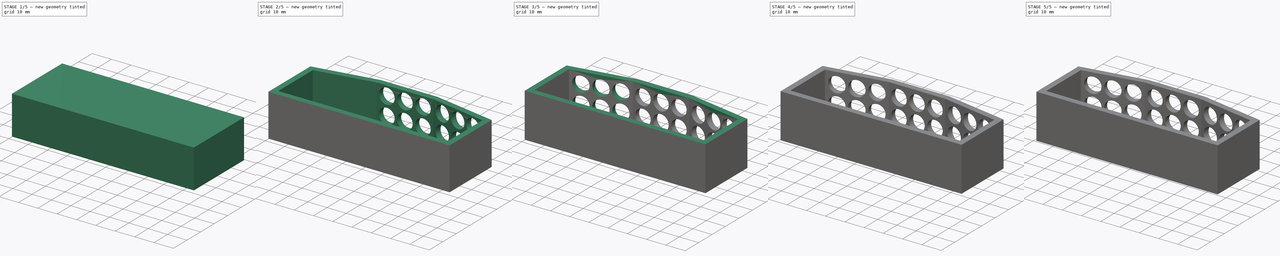
[diagram: build sequence overview — one tinted view per stage of 5, left to right]
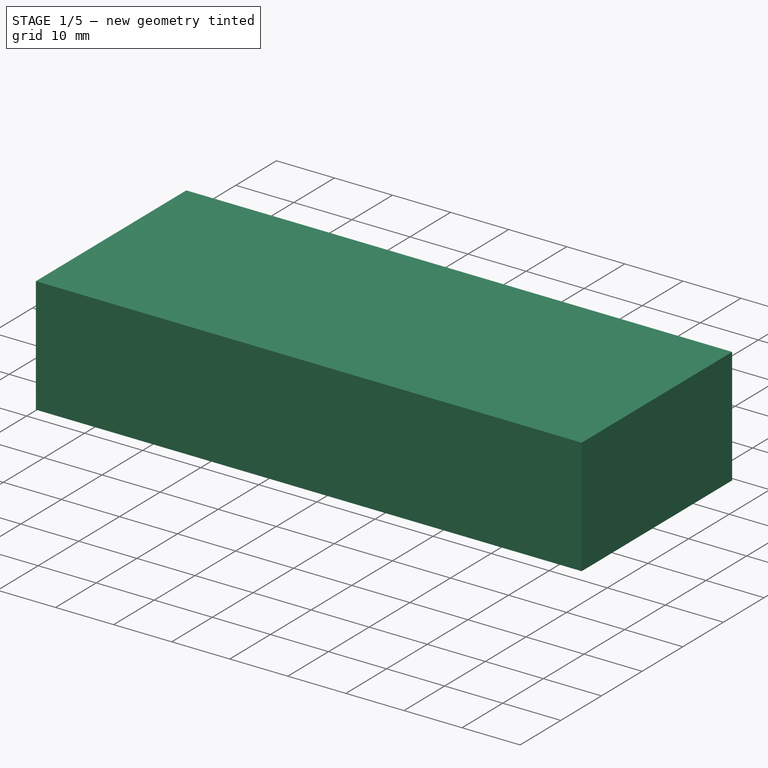
[diagram: stage 1 of 5 — iso view after this stage's code; geometry added in this stage tinted green]
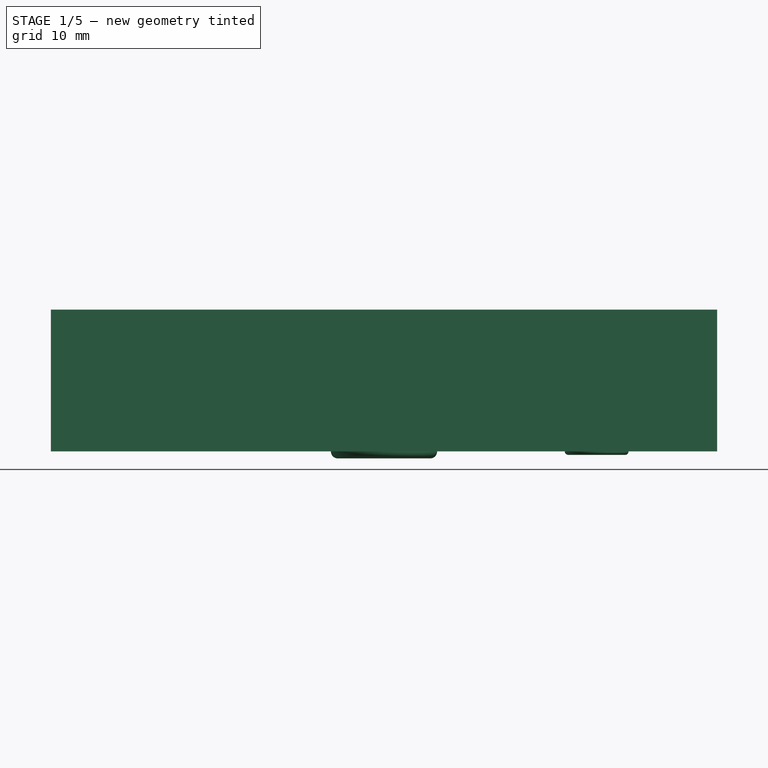
[diagram: stage 1 of 5 — front view after this stage's code; geometry added in this stage tinted green]
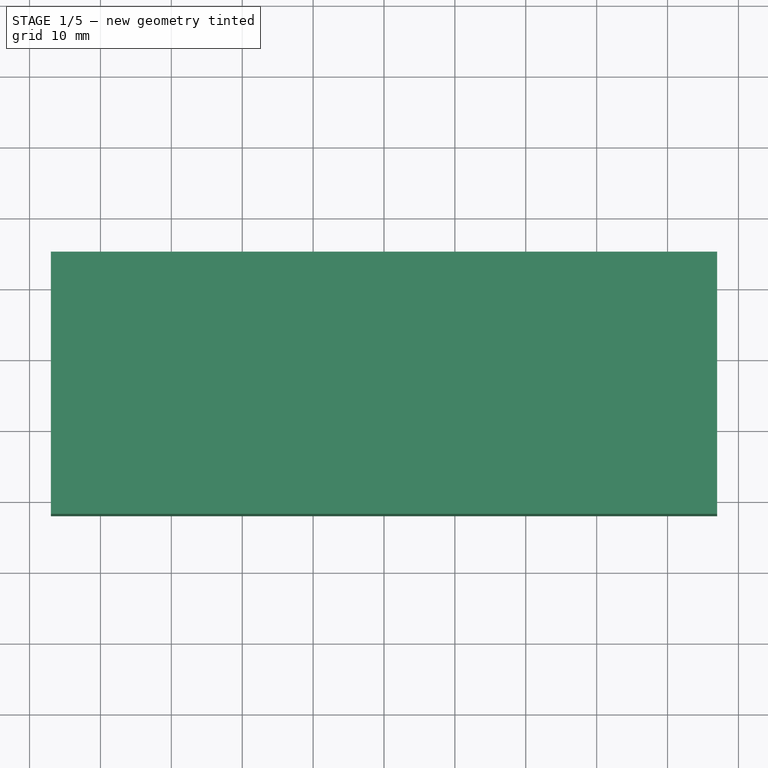
[diagram: stage 1 of 5 — top view after this stage's code; geometry added in this stage tinted green]
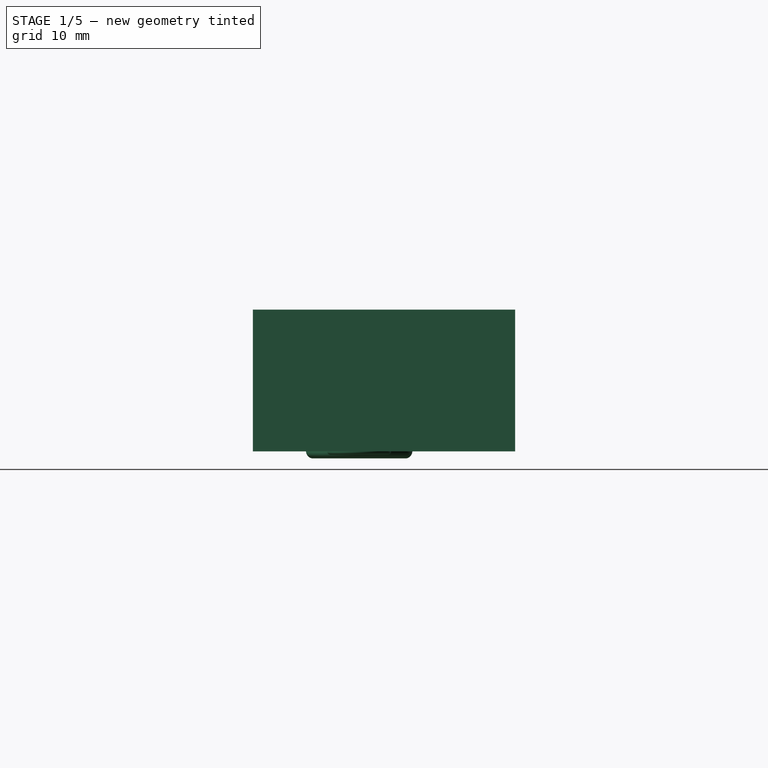
[diagram: stage 1 of 5 — right view after this stage's code; geometry added in this stage tinted green]
FCSTD DOCUMENT  (FreeCAD 0.18.4R)
Label: ir_mount_base_v2
License: All rights reserved
LicenseURL: http://en.wikipedia.org/wiki/All_rights_reserved
objects: Sketcher::SketchObject×14, PartDesign::Pocket×14, Part::Torus×5, Part::Cut×5, PartDesign::Pad×4, PartDesign::Body×1
note: 61 computed .brp shape members not serialized (recipe doc carries the construction recipe); baked Part::Feature solids carry a one-line shape summary decoded from their .brp

FEATURE [Sketcher::SketchObject] Sketch
  MapMode = 5
  Support = -> [XY_Plane]
  sketch-geometry (4):
    g0: LineSegment StartX=0 StartY=0 StartZ=0 EndX=100 EndY=0 EndZ=0
    g1: LineSegment StartX=100 StartY=0 StartZ=0 EndX=100 EndY=45 EndZ=0
    g2: LineSegment StartX=100 StartY=45 StartZ=0 EndX=0 EndY=45 EndZ=0
    g3: LineSegment StartX=0 StartY=45 StartZ=0 EndX=0 EndY=0 EndZ=0
  constraints (11):
    c: Coincident(g0,g1)
    c: Coincident(g1,g2)
    c: Coincident(g2,g3)
    c: Coincident(g3,g0)
    c: Horizontal(g0)
    c: Horizontal(g2)
    c: Vertical(g1)
    c: Vertical(g3)
    c: Distance(g2) = 100
    c: Distance(g1) = 45
    c: Coincident(g-1,g0)
FEATURE [PartDesign::Pad] Pad
  Length = 20
  Length2 = 100
  Profile = -> Sketch
  Type = 0
FEATURE [PartDesign::Pocket] Pocket
  BaseFeature = -> Pad
  Length = 3
  Length2 = 100
  Profile = -> Pad [Face2]
  Type = 0
FEATURE [PartDesign::Pocket] Pocket001
  BaseFeature = -> Pocket
  Length = 3
  Length2 = 100
  Profile = -> Pocket [Face5]
  Type = 0
FEATURE [PartDesign::Pocket] Pocket002
  BaseFeature = -> Pocket001
  Length = 8
  Length2 = 100
  Profile = -> Pocket001 [Face1]
  Type = 0
FEATURE [Part::Torus] Torus001
  Angle1 = -180
  Angle2 = 180
  Angle3 = 360
  AttacherType = Attacher::AttachEngine3D
  Placement = pos=(50,23,0) rot=(0,0,1;0rad)
  Radius1 = 6.5
  Radius2 = 1
FEATURE [Part::Torus] Torus004
  Angle1 = -180
  Angle2 = 180
  Angle3 = 360
  AttacherType = Attacher::AttachEngine3D
  Placement = pos=(80,23,0) rot=(0,0,1;0rad)
  Radius1 = 4
  Radius2 = 0.5
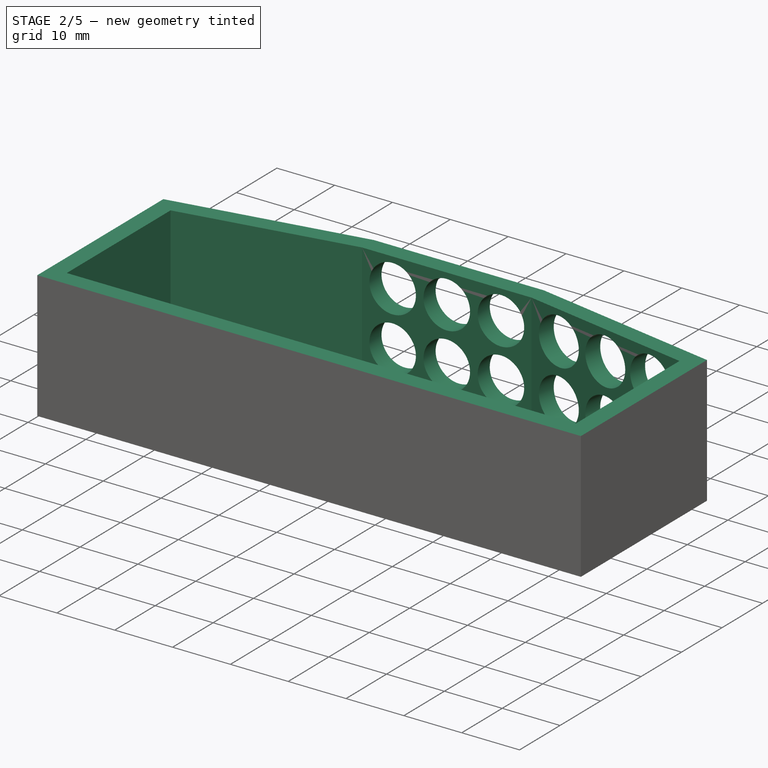
[diagram: stage 2 of 5 — iso view after this stage's code; geometry added in this stage tinted green]
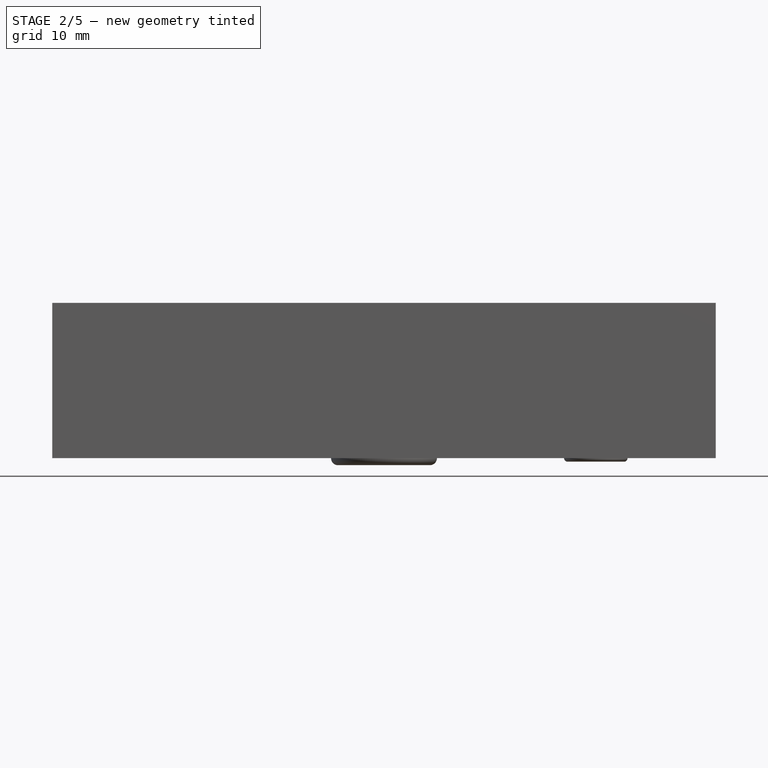
[diagram: stage 2 of 5 — front view after this stage's code; geometry added in this stage tinted green]
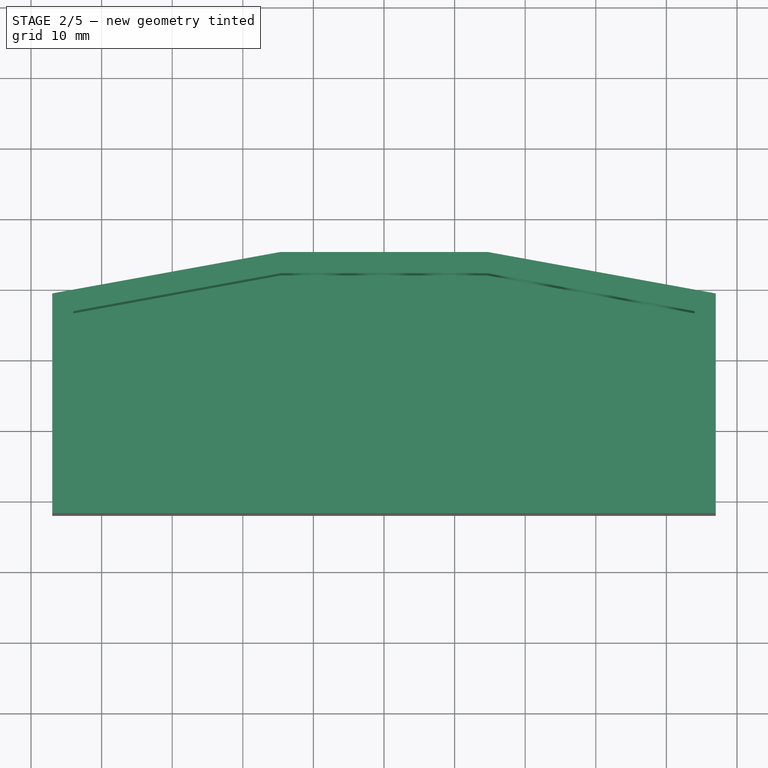
[diagram: stage 2 of 5 — top view after this stage's code; geometry added in this stage tinted green]
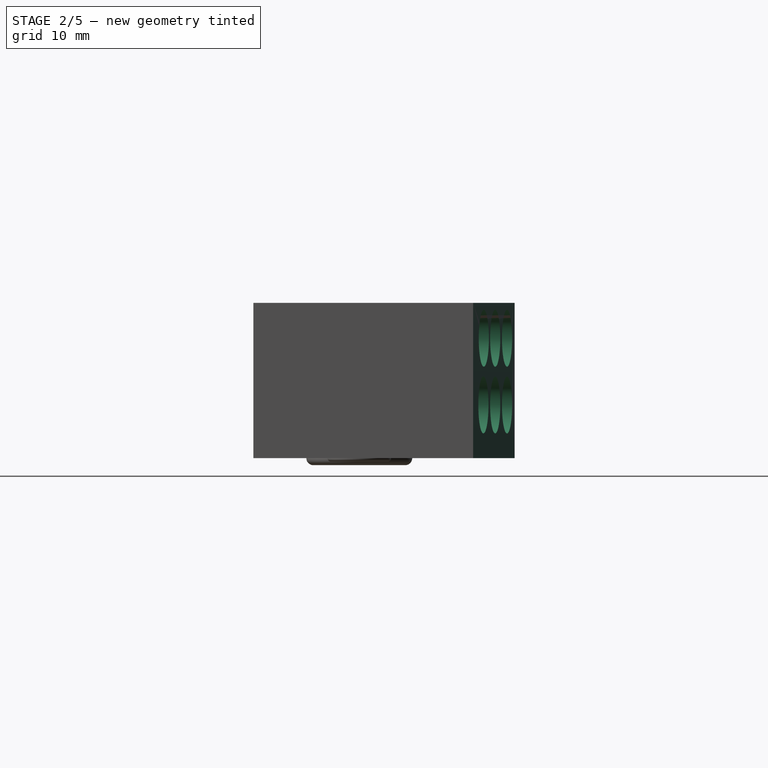
[diagram: stage 2 of 5 — right view after this stage's code; geometry added in this stage tinted green]
FEATURE [Sketcher::SketchObject] Sketch001
  ExternalGeometry = -> [Pocket002]
  MapMode = 5
  Placement = pos=(0,0,20) rot=(0,0,1;0rad)
  Support = -> [Pocket002]
  sketch-geometry (6):
    g0: LineSegment StartX=3 StartY=45 StartZ=0 EndX=3 EndY=39.13 EndZ=0
    g1: LineSegment StartX=3 StartY=39.13 StartZ=0 EndX=35.3 EndY=45 EndZ=0
    g2: LineSegment StartX=35.3 StartY=45 StartZ=0 EndX=3 EndY=45 EndZ=0
    g3: LineSegment StartX=64.7 StartY=45 StartZ=0 EndX=97 EndY=45 EndZ=0
    g4: LineSegment StartX=97 StartY=45 StartZ=0 EndX=97 EndY=39.13 EndZ=0
    g5: LineSegment StartX=97 StartY=39.13 StartZ=0 EndX=64.7 EndY=45 EndZ=0
  constraints (19):
    c: Coincident(g3,g4)
    c: Coincident(g4,g5)
    c: Coincident(g5,g3)
    c: Coincident(g2,g1)
    c: Coincident(g2,g0)
    c: Coincident(g0,g1)
    c: Distance(g0,g-4) = 94
    c: Distance(g3,g-6) = 94
    c: Distance(g0,g-4) = 94
    c: Distance(g4,g-6) = 94
    c: Distance(g-4) = 37
    c: Distance(g1,g-5) = 37
    c: Distance(g0,g-5) = 37
    c: Distance(g3,g-5) = 37
    c: Distance(g3,g-5) = 37
    c: Distance(g2) = 32.3
    c: Distance(g3) = 32.3
    c: Distance(g0) = 5.87
    c: Distance(g4) = 5.87
FEATURE [PartDesign::Pocket] Pocket003
  BaseFeature = -> Pocket002
  Length = 20
  Length2 = 100
  Profile = -> Sketch001
  Type = 0
FEATURE [Sketcher::SketchObject] Sketch002
  ExternalGeometry = -> [Pocket003]
  MapMode = 5
  Placement = pos=(0,0,20) rot=(0,0,1;0rad)
  Support = -> [Pocket003]
  sketch-geometry (6):
    g0: LineSegment StartX=6 StartY=36.6261 StartZ=0 EndX=6 EndY=11 EndZ=0
    g1: LineSegment StartX=6 StartY=11 StartZ=0 EndX=94 EndY=11 EndZ=0
    g2: LineSegment StartX=94 StartY=36.6261 StartZ=0 EndX=94 EndY=11 EndZ=0
    g3: LineSegment StartX=64.6581 StartY=42 StartZ=0 EndX=94 EndY=36.6261 EndZ=0
    g4: LineSegment StartX=35.3419 StartY=42 StartZ=0 EndX=64.6581 EndY=42 EndZ=0
    g5: LineSegment StartX=35.3419 StartY=42 StartZ=0 EndX=6 EndY=36.6261 EndZ=0
  constraints (22):
    c: Coincident(g0,g5)
    c: Coincident(g0,g1)
    c: Coincident(g1,g2)
    c: Coincident(g3,g2)
    c: Coincident(g3,g4)
    c: Coincident(g4,g5)
    c: Distance(g1,g-7) = 3
    c: Distance(g0,g-7) = 3
    c: Distance(g0,g-6) = 3
    c: Distance(g1,g-8) = 3
    c: Distance(g2,g-8) = 3
    c: Distance(g0,g-6) = 3
    c: Distance(g4,g-3) = 3
    c: Distance(g3,g-3) = 3
    c: Distance(g0,g-5) = 3
    c: Distance(g-6) = 31.13
    c: Distance(g5) = 29.83
    c: Distance(g3) = 29.83
    c: Distance(g2,g-4) = 3
    c: Distance(g-5) = 32.8291
    c: Distance(g-4) = 32.8291
    c: Distance(g-3) = 29.4
FEATURE [PartDesign::Pocket] Pocket004
  BaseFeature = -> Pocket003
  Length = 17
  Length2 = 100
  Profile = -> Sketch002
  Type = 0
FEATURE [PartDesign::Pad] Pad001
  BaseFeature = -> Pocket004
  Length = 2
  Length2 = 100
  Profile = -> Pocket004 [Face8]
  Refine = true
  Type = 0
FEATURE [Sketcher::SketchObject] Sketch003
  ExternalGeometry = -> [Pad001]
  MapMode = 5
  Placement = pos=(0,45,0) rot=(0,0.707107,0.707107;3.14159rad)
  Support = -> [Pad001]
  sketch-geometry (6):
    g0: Circle CenterX=-59.3625 CenterY=16.975 CenterZ=0 NormalX=0 NormalY=0 NormalZ=1 AngleXU=0 Radius=4.025
    g1: Circle CenterX=-50 CenterY=16.975 CenterZ=0 NormalX=0 NormalY=0 NormalZ=1 AngleXU=0 Radius=4.025
    g2: Circle CenterX=-40.6375 CenterY=16.975 CenterZ=0 NormalX=0 NormalY=0 NormalZ=1 AngleXU=0 Radius=4.025
    g3: Circle CenterX=-59.3625 CenterY=7.525 CenterZ=0 NormalX=0 NormalY=0 NormalZ=1 AngleXU=0 Radius=4.025
    g4: Circle CenterX=-50 CenterY=7.525 CenterZ=0 NormalX=0 NormalY=0 NormalZ=1 AngleXU=0 Radius=4.025
    g5: Circle CenterX=-40.6375 CenterY=7.525 CenterZ=0 NormalX=0 NormalY=0 NormalZ=1 AngleXU=0 Radius=4.025
  constraints (18):
    c: Radius(g2) = 4.025
    c: Radius(g1) = 4.025
    c: Radius(g0) = 4.025
    c: Radius(g3) = 4.025
    c: Radius(g4) = 4.025
    c: Radius(g5) = 4.025
    c: Distance(g5,g-5) = 5.3375
    c: Distance(g3,g-4) = 5.3375
    c: Distance(g4,g3) = 9.3625
    c: Distance(g0,g-4) = 5.3375
    c: Distance(g2,g-5) = 5.3375
    c: Distance(g1,g0) = 9.3625
    c: Distance(g0,g-3) = 5.025
    c: Distance(g1,g-3) = 5.025
    c: Distance(g2,g-3) = 5.025
    c: Distance(g3,g-6) = 7.525
    c: Distance(g4,g-6) = 7.525
    c: Distance(g5,g-6) = 7.525
FEATURE [PartDesign::Pocket] Pocket005
  BaseFeature = -> Pad001
  Length = 5
  Length2 = 100
  Profile = -> Sketch003
  Type = 0
FEATURE [Sketcher::SketchObject] Sketch004
  ExternalGeometry = -> [Pocket005]
  MapMode = 5
  Placement = pos=(9.9851,54.9435,0) rot=(0.063602,0.705675,0.705675;3.01456rad)
  Support = -> [Pocket005]
  sketch-geometry (6):
    g0: Circle CenterX=-80.0099 CenterY=16.975 CenterZ=0 NormalX=0 NormalY=0 NormalZ=1 AngleXU=0 Radius=4.025
    g1: Circle CenterX=-70.9736 CenterY=16.975 CenterZ=0 NormalX=0 NormalY=0 NormalZ=1 AngleXU=0 Radius=4.025
    g2: Circle CenterX=-61.6111 CenterY=16.975 CenterZ=0 NormalX=0 NormalY=0 NormalZ=1 AngleXU=0 Radius=4.025
    g3: Circle CenterX=-80.3361 CenterY=7.525 CenterZ=0 NormalX=0 NormalY=0 NormalZ=1 AngleXU=0 Radius=4.025
    g4: Circle CenterX=-70.9736 CenterY=7.525 CenterZ=0 NormalX=0 NormalY=0 NormalZ=1 AngleXU=0 Radius=4.025
    g5: Circle CenterX=-61.6111 CenterY=7.525 CenterZ=0 NormalX=0 NormalY=0 NormalZ=1 AngleXU=0 Radius=4.025
  constraints (19):
    c: Radius(g2) = 4.025
    c: Radius(g1) = 4.025
    c: Radius(g5) = 4.025
    c: Radius(g4) = 4.025
    c: Radius(g3) = 4.025
    c: Radius(g0) = 4.025
    c: Distance(g5,g-5) = 7.525
    c: Distance(g-5) = 32.8291
    c: Distance(g4,g-5) = 7.525
    c: Distance(g3,g-5) = 7.525
    c: Distance(g2,g-3) = 5.025
    c: Distance(g1,g-3) = 5.025
    c: Distance(g0,g-3) = 5.025
    c: Distance(g0,g1) = 9.03625
    c: Distance(g1,g2) = 9.3625
    c: Distance(g3,g4) = 9.3625
    c: Distance(g4,g5) = 9.3625
    c: Distance(g5,g-4) = 6
    c: Distance(g2,g-4) = 6
FEATURE [PartDesign::Pocket] Pocket006
  BaseFeature = -> Pocket005
  Length = 5
  Length2 = 100
  Profile = -> Sketch004
  Type = 0
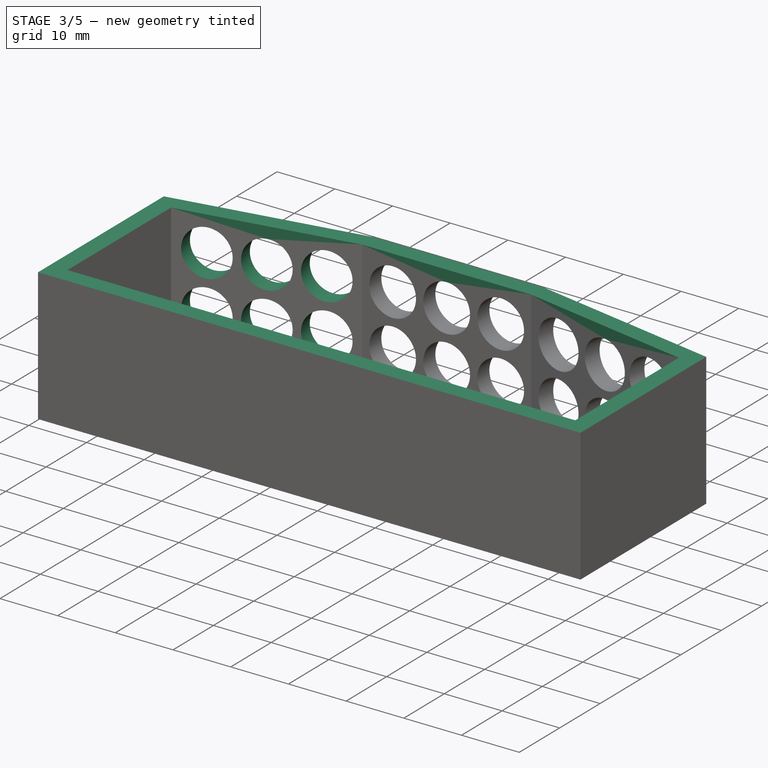
[diagram: stage 3 of 5 — iso view after this stage's code; geometry added in this stage tinted green]
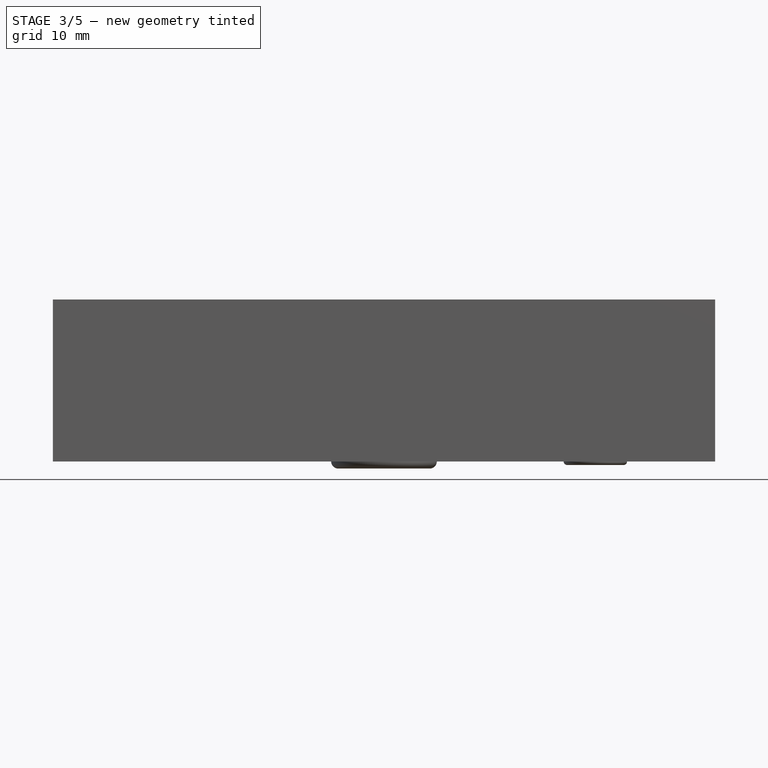
[diagram: stage 3 of 5 — front view after this stage's code; geometry added in this stage tinted green]
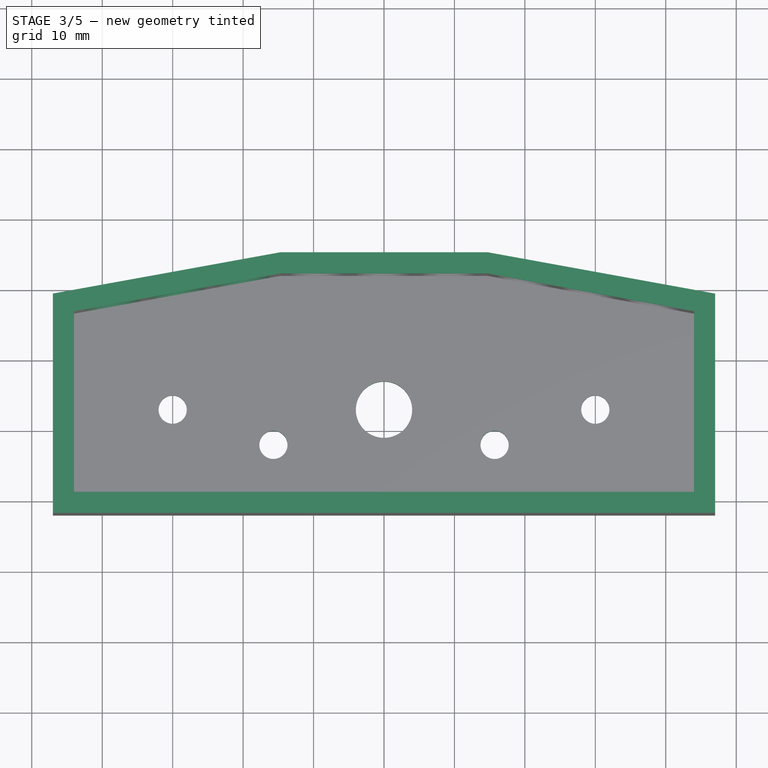
[diagram: stage 3 of 5 — top view after this stage's code; geometry added in this stage tinted green]
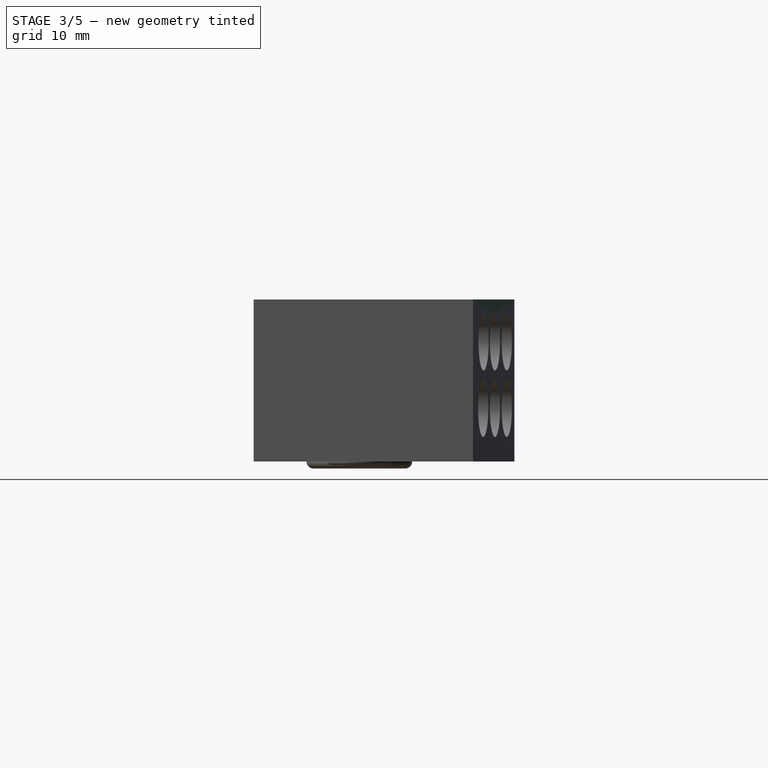
[diagram: stage 3 of 5 — right view after this stage's code; geometry added in this stage tinted green]
FEATURE [Sketcher::SketchObject] Sketch005
  ExternalGeometry = -> [Pocket006]
  MapMode = 5
  Placement = pos=(-6.78797,37.3512,0) rot=(-0.063602,0.705675,0.705675;3.26863rad)
  Support = -> [Pocket006]
  sketch-geometry (6):
    g0: Circle CenterX=-36.7773 CenterY=16.975 CenterZ=0 NormalX=0 NormalY=0 NormalZ=1 AngleXU=0 Radius=4.025
    g1: Circle CenterX=-27.4148 CenterY=16.975 CenterZ=0 NormalX=0 NormalY=0 NormalZ=1 AngleXU=0 Radius=4.025
    g2: Circle CenterX=-18.0523 CenterY=16.975 CenterZ=0 NormalX=0 NormalY=0 NormalZ=1 AngleXU=0 Radius=4.025
    g3: Circle CenterX=-36.7773 CenterY=7.525 CenterZ=0 NormalX=0 NormalY=0 NormalZ=1 AngleXU=0 Radius=4.025
    g4: Circle CenterX=-27.4148 CenterY=7.525 CenterZ=0 NormalX=0 NormalY=0 NormalZ=1 AngleXU=0 Radius=4.025
    g5: Circle CenterX=-18.0523 CenterY=7.525 CenterZ=0 NormalX=0 NormalY=0 NormalZ=1 AngleXU=0 Radius=4.025
  constraints (18):
    c: Radius(g2) = 4.025
    c: Radius(g1) = 4.025
    c: Radius(g0) = 4.025
    c: Radius(g3) = 4.025
    c: Radius(g4) = 4.025
    c: Radius(g5) = 4.025
    c: Distance(g3,g-5) = 7.525
    c: Distance(g4,g-5) = 7.525
    c: Distance(g5,g-5) = 7.525
    c: Distance(g0,g-3) = 5.025
    c: Distance(g1,g-3) = 5.025
    c: Distance(g2,g-3) = 5.025
    c: Distance(g0,g1) = 9.3625
    c: Distance(g1,g2) = 9.3625
    c: Distance(g3,g4) = 9.3625
    c: Distance(g4,g5) = 9.3625
    c: Distance(g3,g-6) = 6
    c: Distance(g0,g-6) = 6
FEATURE [PartDesign::Pocket] Pocket007
  BaseFeature = -> Pocket006
  Length = 5
  Length2 = 100
  Profile = -> Sketch005
  Type = 0
FEATURE [Sketcher::SketchObject] Sketch006
  ExternalGeometry = -> [Pocket007]
  MapMode = 5
  Placement = pos=(0,0,0) rot=(1,0,0;3.14159rad)
  Support = -> [Pocket007]
  sketch-geometry (5):
    g0: Circle CenterX=50 CenterY=-23 CenterZ=0 NormalX=0 NormalY=0 NormalZ=1 AngleXU=0 Radius=4
    g1: Circle CenterX=65.7 CenterY=-18 CenterZ=0 NormalX=0 NormalY=0 NormalZ=1 AngleXU=0 Radius=2
    g2: Circle CenterX=34.3 CenterY=-18 CenterZ=0 NormalX=0 NormalY=0 NormalZ=1 AngleXU=0 Radius=2
    g3: Circle CenterX=20 CenterY=-23 CenterZ=0 NormalX=0 NormalY=0 NormalZ=1 AngleXU=0 Radius=2
    g4: Circle CenterX=80 CenterY=-23 CenterZ=0 NormalX=0 NormalY=0 NormalZ=1 AngleXU=0 Radius=2
  constraints (17):
    c: Radius(g0) = 4
    c: Radius(g1) = 2
    c: Radius(g2) = 2
    c: Radius(g3) = 2
    c: Radius(g4) = 2
    c: Distance(g-3) = 94
    c: Distance(g0,g-8) = 47
    c: Distance(g1,g-3) = 10
    c: Distance(g2,g-3) = 10
    c: Distance(g1,g-8) = 31.3
    c: Distance(g2,g-4) = 31.3
    c: Distance(g0,g-3) = 15
    c: Distance(g3,g-4) = 17
    c: Distance(g4,g-8) = 17
    c: Distance(g-4) = 31.13
    c: Distance(g3,g-3) = 15
    c: Distance(g4,g-3) = 15
FEATURE [PartDesign::Pocket] Pocket008
  BaseFeature = -> Pocket007
  Length = 5
  Length2 = 100
  Profile = -> Sketch006
  Type = 0
FEATURE [Sketcher::SketchObject] Sketch007
  ExternalGeometry = -> [Pocket008]
  MapMode = 5
  Placement = pos=(0,0,0) rot=(1,0,0;3.14159rad)
  Support = -> [Pocket008]
  sketch-geometry (2):
    g0: Circle CenterX=20 CenterY=-23 CenterZ=0 NormalX=0 NormalY=0 NormalZ=1 AngleXU=0 Radius=3
    g1: Circle CenterX=80 CenterY=-23 CenterZ=0 NormalX=0 NormalY=0 NormalZ=1 AngleXU=0 Radius=3
  constraints (4):
    c: Radius(g1) = 3
    c: Radius(g0) = 3
    c: Coincident(g-3,g0)
    c: Coincident(g1,g-4)
FEATURE [PartDesign::Pocket] Pocket009
  BaseFeature = -> Pocket008
  Length = 1
  Length2 = 100
  Profile = -> Sketch007
  Type = 0
FEATURE [PartDesign::Pad] Pad002
  BaseFeature = -> Pocket009
  Length = 1
  Length2 = 100
  Profile = -> Pocket009 [Face13]
  Refine = true
  Type = 0
FEATURE [Sketcher::SketchObject] Sketch008
  ExternalGeometry = -> [Pad002]
  MapMode = 5
  Placement = pos=(0,45,0) rot=(0,0.707107,0.707107;3.14159rad)
  Support = -> [Pad002]
  sketch-geometry (8):
    g0: Circle CenterX=-59.3625 CenterY=16.975 CenterZ=0 NormalX=0 NormalY=0 NormalZ=1 AngleXU=0 Radius=4.05
    g1: Circle CenterX=-50 CenterY=16.975 CenterZ=0 NormalX=0 NormalY=0 NormalZ=1 AngleXU=0 Radius=4.05
    g2: Circle CenterX=-40.6375 CenterY=16.975 CenterZ=0 NormalX=0 NormalY=0 NormalZ=1 AngleXU=0 Radius=4.05
    g3: Circle CenterX=-40.6375 CenterY=7.525 CenterZ=0 NormalX=0 NormalY=0 NormalZ=1 AngleXU=0 Radius=4.05
    g4: Circle CenterX=-50 CenterY=7.525 CenterZ=0 NormalX=0 NormalY=0 NormalZ=1 AngleXU=0 Radius=4.05
    g5: Circle CenterX=-59.3625 CenterY=7.525 CenterZ=0 NormalX=0 NormalY=0 NormalZ=1 AngleXU=0 Radius=4.05
    g6: GeomPoint X=-50 Y=16.975 Z=0
    g7: GeomPoint X=-50 Y=16.975 Z=0
  constraints (13):
    c: Radius(g0) = 4.05
    c: Coincident(g0,g-8)
    c: Radius(g-8) = 4.025
    c: Radius(g1) = 4.05
    c: Radius(g2) = 4.05
    c: Radius(g5) = 4.05
    c: Radius(g4) = 4.05
    c: Radius(g3) = 4.05
    c: Coincident(g6,g1)
    c: Coincident(g2,g-4)
    c: Coincident(g5,g-7)
    c: Coincident(g4,g-6)
    c: Coincident(g3,g-5)
FEATURE [PartDesign::Pocket] Pocket010
  BaseFeature = -> Pad002
  Length = 5
  Length2 = 100
  Profile = -> Sketch008
  Type = 0
FEATURE [Sketcher::SketchObject] Sketch009
  ExternalGeometry = -> [Pocket010]
  MapMode = 5
  Placement = pos=(9.9851,54.9435,0) rot=(0.063602,0.705675,0.705675;3.01456rad)
  Support = -> [Pocket010]
  sketch-geometry (6):
    g0: Circle CenterX=-80.0099 CenterY=16.975 CenterZ=0 NormalX=0 NormalY=0 NormalZ=1 AngleXU=0 Radius=4.05
    g1: Circle CenterX=-70.9736 CenterY=16.975 CenterZ=0 NormalX=0 NormalY=0 NormalZ=1 AngleXU=0 Radius=4.05
    g2: Circle CenterX=-61.6111 CenterY=16.975 CenterZ=0 NormalX=0 NormalY=0 NormalZ=1 AngleXU=0 Radius=4.05
    g3: Circle CenterX=-61.6111 CenterY=7.525 CenterZ=0 NormalX=0 NormalY=0 NormalZ=1 AngleXU=0 Radius=4.05
    g4: Circle CenterX=-70.9736 CenterY=7.525 CenterZ=0 NormalX=0 NormalY=0 NormalZ=1 AngleXU=0 Radius=4.05
    g5: Circle CenterX=-80.3361 CenterY=7.525 CenterZ=0 NormalX=0 NormalY=0 NormalZ=1 AngleXU=0 Radius=4.05
  constraints (12):
    c: Radius(g0) = 4.05
    c: Radius(g1) = 4.05
    c: Radius(g2) = 4.05
    c: Radius(g3) = 4.05
    c: Radius(g4) = 4.05
    c: Radius(g5) = 4.05
    c: Coincident(g2,g-3)
    c: Coincident(g1,g-6)
    c: Coincident(g0,g-7)
    c: Coincident(g5,g-8)
    c: Coincident(g4,g-4)
    c: Coincident(g3,g-5)
FEATURE [PartDesign::Pocket] Pocket011
  BaseFeature = -> Pocket010
  Length = 5
  Length2 = 100
  Profile = -> Sketch009
  Type = 0
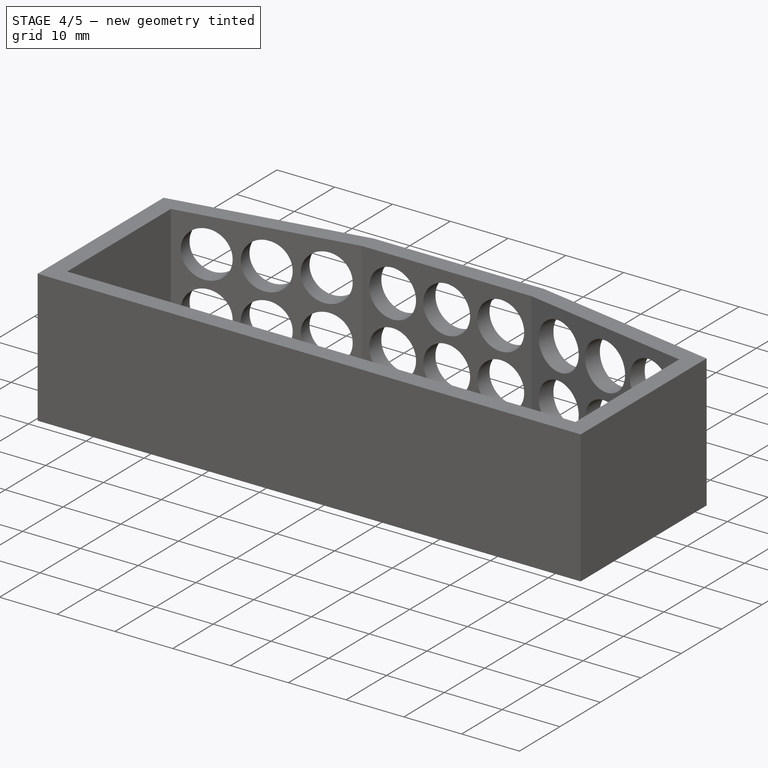
[diagram: stage 4 of 5 — iso view after this stage's code; geometry added in this stage tinted green]
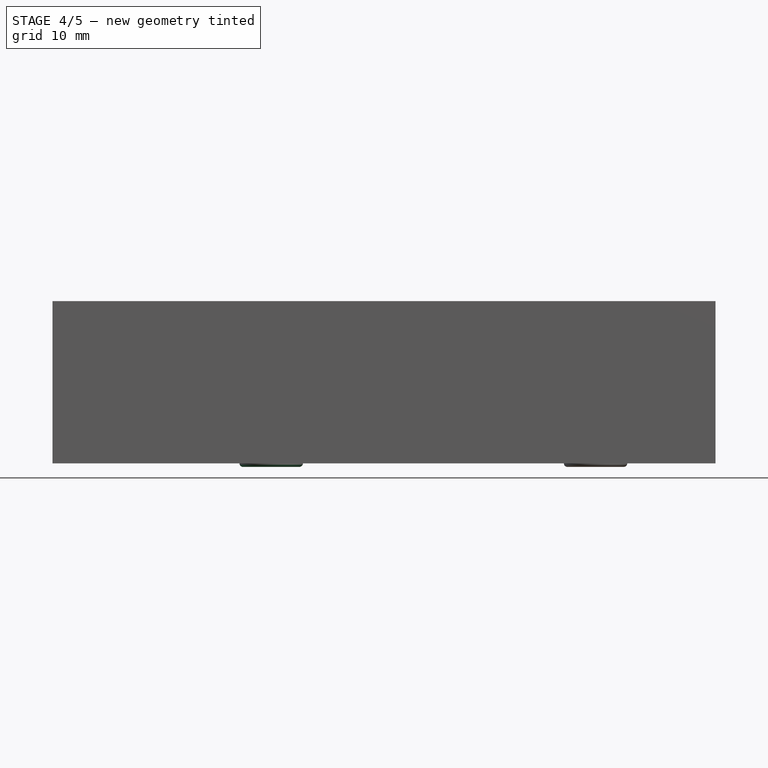
[diagram: stage 4 of 5 — front view after this stage's code; geometry added in this stage tinted green]
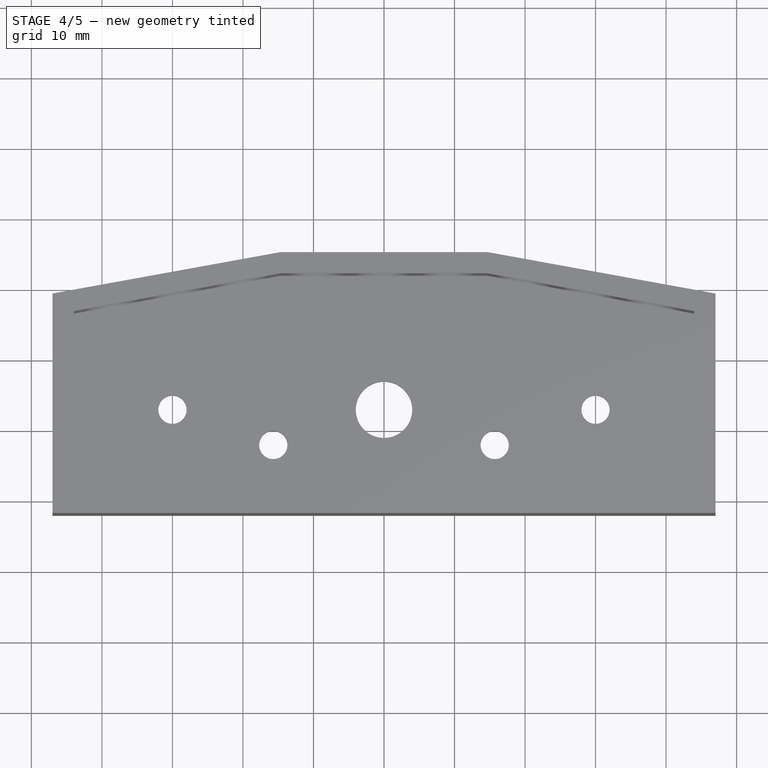
[diagram: stage 4 of 5 — top view after this stage's code; geometry added in this stage tinted green]
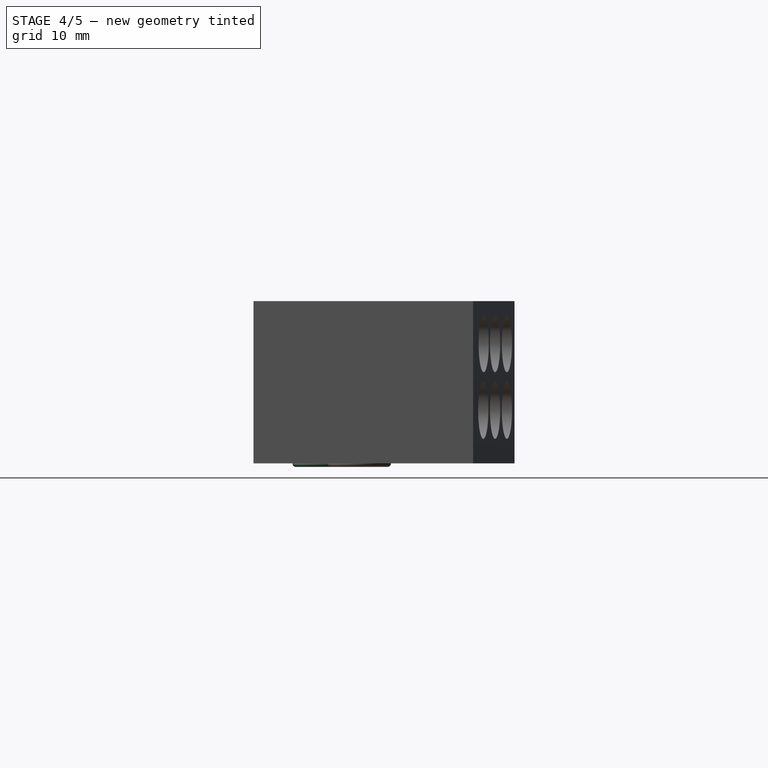
[diagram: stage 4 of 5 — right view after this stage's code; geometry added in this stage tinted green]
FEATURE [Sketcher::SketchObject] Sketch010
  ExternalGeometry = -> [Pocket011]
  MapMode = 5
  Placement = pos=(-6.78797,37.3512,0) rot=(-0.063602,0.705675,0.705675;3.26863rad)
  Support = -> [Pocket011]
  sketch-geometry (6):
    g0: Circle CenterX=-36.7773 CenterY=16.975 CenterZ=0 NormalX=0 NormalY=0 NormalZ=1 AngleXU=0 Radius=4.05
    g1: Circle CenterX=-27.4148 CenterY=16.975 CenterZ=0 NormalX=0 NormalY=0 NormalZ=1 AngleXU=0 Radius=4.05
    g2: Circle CenterX=-18.0523 CenterY=16.975 CenterZ=0 NormalX=0 NormalY=0 NormalZ=1 AngleXU=0 Radius=4.05
    g3: Circle CenterX=-18.0523 CenterY=7.525 CenterZ=0 NormalX=0 NormalY=0 NormalZ=1 AngleXU=0 Radius=4.05
    g4: Circle CenterX=-27.4148 CenterY=7.525 CenterZ=0 NormalX=0 NormalY=0 NormalZ=1 AngleXU=0 Radius=4.05
    g5: Circle CenterX=-36.7773 CenterY=7.525 CenterZ=0 NormalX=0 NormalY=0 NormalZ=1 AngleXU=0 Radius=4.05
  constraints (12):
    c: Radius(g2) = 4.05
    c: Radius(g1) = 4.05
    c: Radius(g0) = 4.05
    c: Radius(g5) = 4.05
    c: Radius(g4) = 4.05
    c: Radius(g3) = 4.05
    c: Coincident(g2,g-3)
    c: Coincident(g3,g-8)
    c: Coincident(g4,g-7)
    c: Coincident(g5,g-6)
    c: Coincident(g0,g-5)
    c: Coincident(g1,g-4)
FEATURE [PartDesign::Pocket] Pocket012
  BaseFeature = -> Pocket011
  Length = 5
  Length2 = 100
  Profile = -> Sketch010
  Type = 0
FEATURE [Sketcher::SketchObject] Sketch011
  ExternalGeometry = -> [Pocket012]
  MapMode = 5
  Placement = pos=(3,0,0) rot=(0.57735,-0.57735,-0.57735;2.0944rad)
  Support = -> [Pocket012]
  sketch-geometry (1):
    g0: Circle CenterX=-20 CenterY=15 CenterZ=0 NormalX=0 NormalY=0 NormalZ=1 AngleXU=0 Radius=4
  constraints (3):
    c: Radius(g0) = 4
    c: Distance(g0,g-4) = 12
    c: Distance(g0,g-3) = 8
FEATURE [PartDesign::Pocket] Pocket013
  BaseFeature = -> Pocket012
  Length = 5
  Length2 = 100
  Profile = -> Sketch011
  Type = 0
FEATURE [Sketcher::SketchObject] Sketch012
  MapMode = 5
  Placement = pos=(3,0,0) rot=(0.57735,-0.57735,-0.57735;2.0944rad)
  Support = -> [Pocket013]
  sketch-geometry (4):
    g0: LineSegment StartX=-27.7057 StartY=19.8566 StartZ=0 EndX=-12.3722 EndY=19.8566 EndZ=0
    g1: LineSegment StartX=-12.3722 StartY=19.8566 StartZ=0 EndX=-12.3722 EndY=8.92577 EndZ=0
    g2: LineSegment StartX=-12.3722 StartY=8.92577 StartZ=0 EndX=-27.7057 EndY=8.92577 EndZ=0
    g3: LineSegment StartX=-27.7057 StartY=8.92577 StartZ=0 EndX=-27.7057 EndY=19.8566 EndZ=0
  constraints (8):
    c: Coincident(g0,g1)
    c: Coincident(g1,g2)
    c: Coincident(g2,g3)
    c: Coincident(g3,g0)
    c: Horizontal(g0)
    c: Horizontal(g2)
    c: Vertical(g1)
    c: Vertical(g3)
FEATURE [PartDesign::Pad] Pad003
  BaseFeature = -> Pocket013
  Length = 3
  Length2 = 100
  Profile = -> Sketch012
  Refine = true
  Reversed = true
  Type = 0
FEATURE [Sketcher::SketchObject] Sketch013
  ExternalGeometry = -> [Pad003]
  MapMode = 5
  Placement = pos=(0,0,0) rot=(1,0,0;3.14159rad)
  Support = -> [Pad003]
  sketch-geometry (3):
    g0: Circle CenterX=34.3 CenterY=-18 CenterZ=0 NormalX=0 NormalY=0 NormalZ=1 AngleXU=0 Radius=4
    g1: Circle CenterX=65.7 CenterY=-18 CenterZ=0 NormalX=0 NormalY=0 NormalZ=1 AngleXU=0 Radius=4
    g2: Circle CenterX=50 CenterY=-23 CenterZ=0 NormalX=0 NormalY=0 NormalZ=1 AngleXU=0 Radius=6.5
  constraints (6):
    c: Coincident(g1,g-4)
    c: Coincident(g2,g-3)
    c: Coincident(g0,g-6)
    c: Radius(g1) = 4
    c: Radius(g2) = 6.5
    c: Radius(g0) = 4
FEATURE [PartDesign::Body] Body
  Group = -> [Sketch,Pad,Pocket,Pocket001,Pocket002,Sketch001,Pocket003,Sketch002,Pocket004,Pad001,Sketch003,Pocket005,Sketch004,Pocket006,Sketch005,Pocket007,Sketch006,Pocket008,Sketch007,Pocket009,Pad002,Sketch008,Pocket010,Sketch009,Pocket011,Sketch010,Pocket012,Sketch011,Pocket013,Sketch012,Pad003,Sketch013]
  Origin = -> Origin
  Tip = -> Pad003
FEATURE [Part::Torus] Torus
  Angle1 = -180
  Angle2 = 180
  Angle3 = 360
  AttacherType = Attacher::AttachEngine3D
  Placement = pos=(34,18,0) rot=(0,0,1;0rad)
  Radius1 = 4
  Radius2 = 0.5
FEATURE [Part::Cut] Cut
  Base = -> Pad003
  Tool = -> Torus001
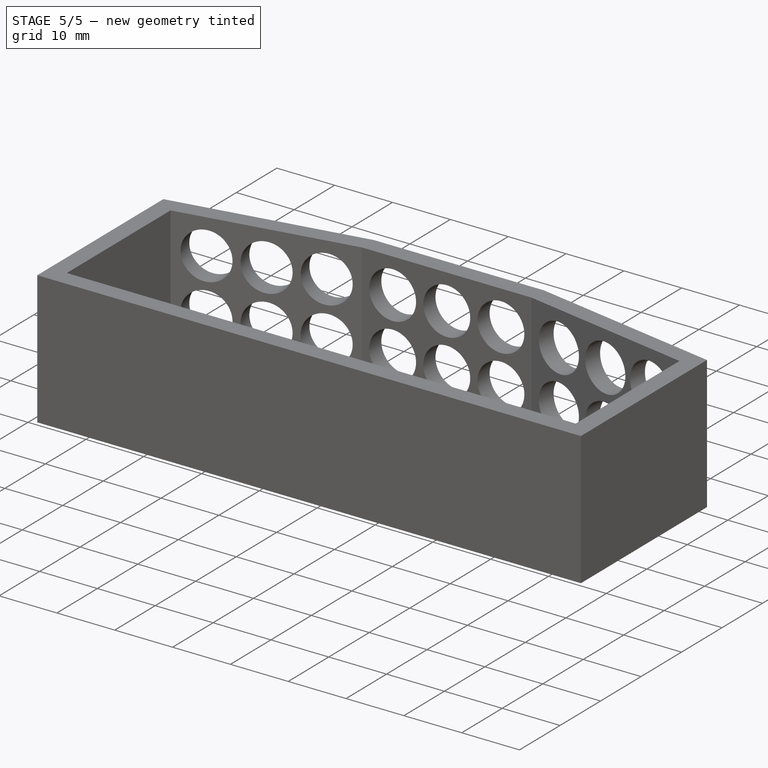
[diagram: stage 5 of 5 — iso view after this stage's code; geometry added in this stage tinted green]
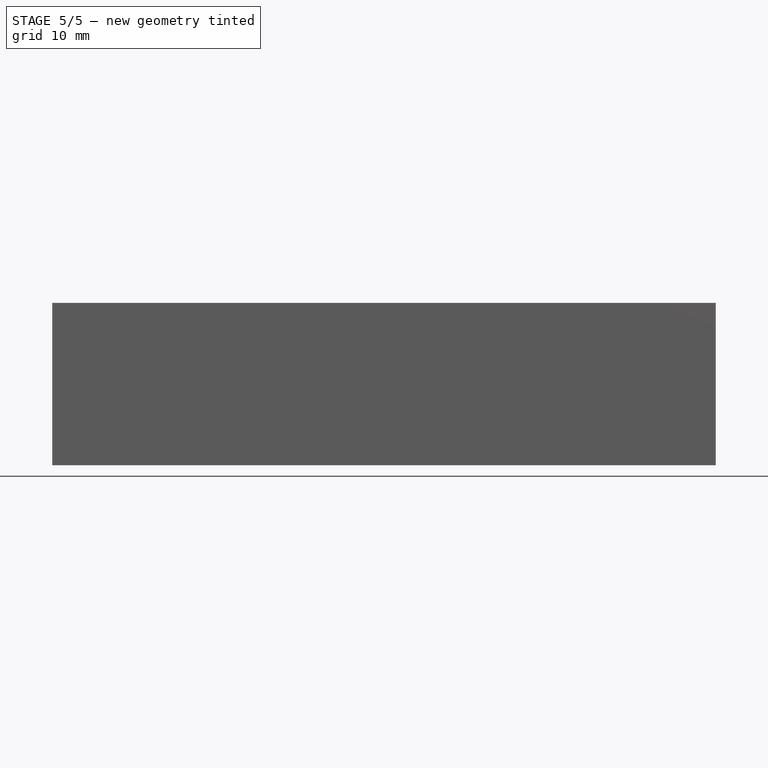
[diagram: stage 5 of 5 — front view after this stage's code; geometry added in this stage tinted green]
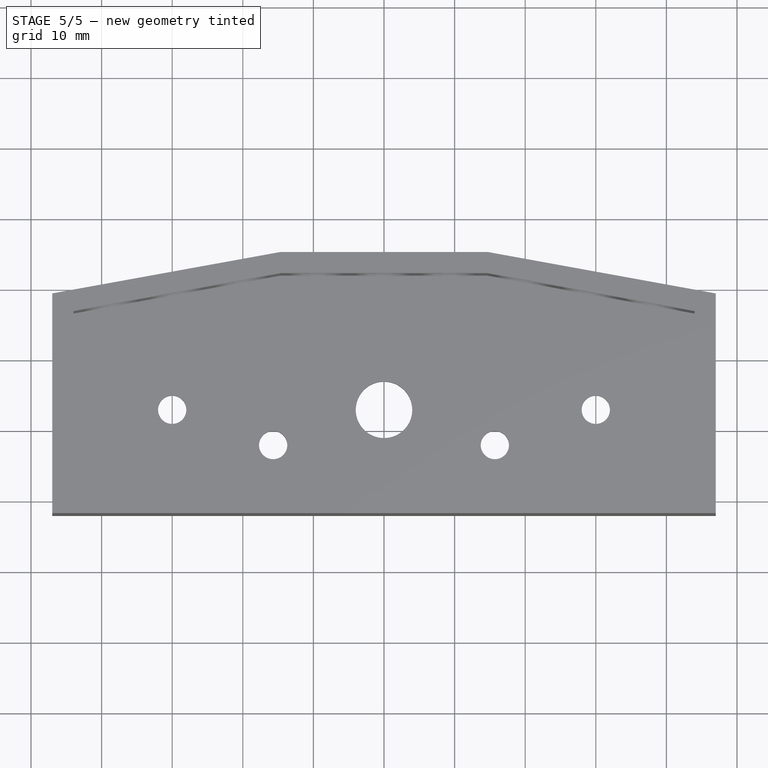
[diagram: stage 5 of 5 — top view after this stage's code; geometry added in this stage tinted green]
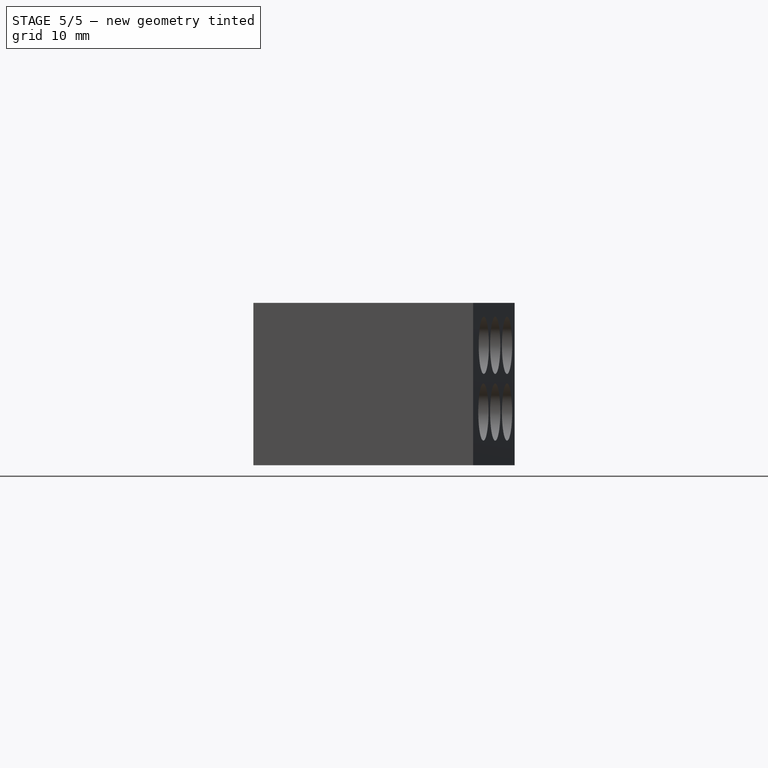
[diagram: stage 5 of 5 — right view after this stage's code; geometry added in this stage tinted green]
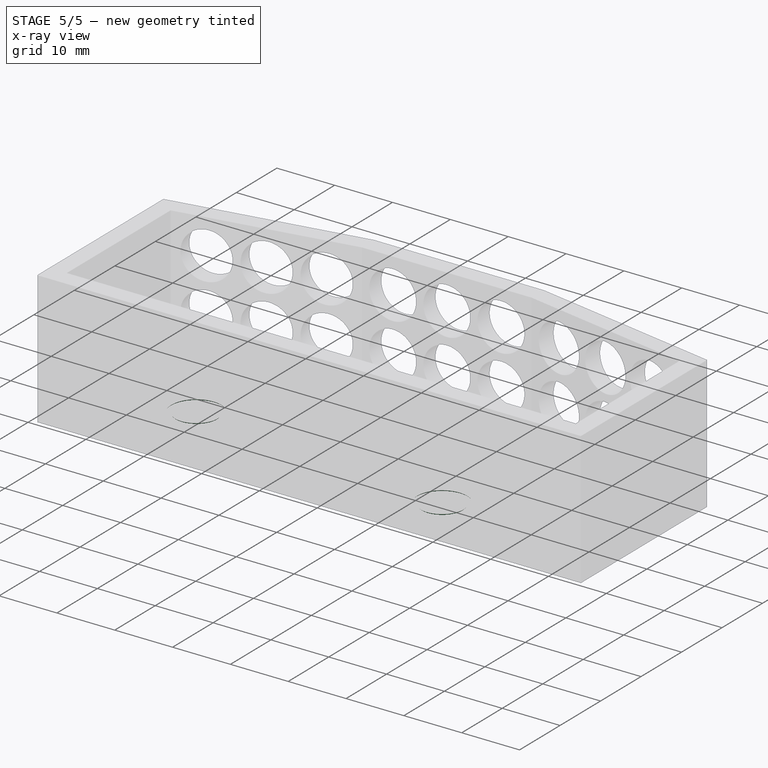
[diagram: stage 5 of 5 — x-ray composite at the iso view; earlier geometry ghosted, this stage's added geometry solid]
FEATURE [Part::Torus] Torus002
  Angle1 = -180
  Angle2 = 180
  Angle3 = 360
  AttacherType = Attacher::AttachEngine3D
  Placement = pos=(66,18,0) rot=(0,0,1;0rad)
  Radius1 = 4
  Radius2 = 0.5
FEATURE [Part::Cut] Cut001
  Base = -> Cut
  Tool = -> Torus
FEATURE [Part::Cut] Cut002
  Base = -> Cut001
  Tool = -> Torus002
FEATURE [Part::Torus] Torus003
  Angle1 = -180
  Angle2 = 180
  Angle3 = 360
  AttacherType = Attacher::AttachEngine3D
  Placement = pos=(20,23,0) rot=(0,0,1;0rad)
  Radius1 = 4
  Radius2 = 0.5
FEATURE [Part::Cut] Cut003
  Base = -> Cut002
  Tool = -> Torus004
FEATURE [Part::Cut] Cut004
  Base = -> Cut003
  Tool = -> Torus003
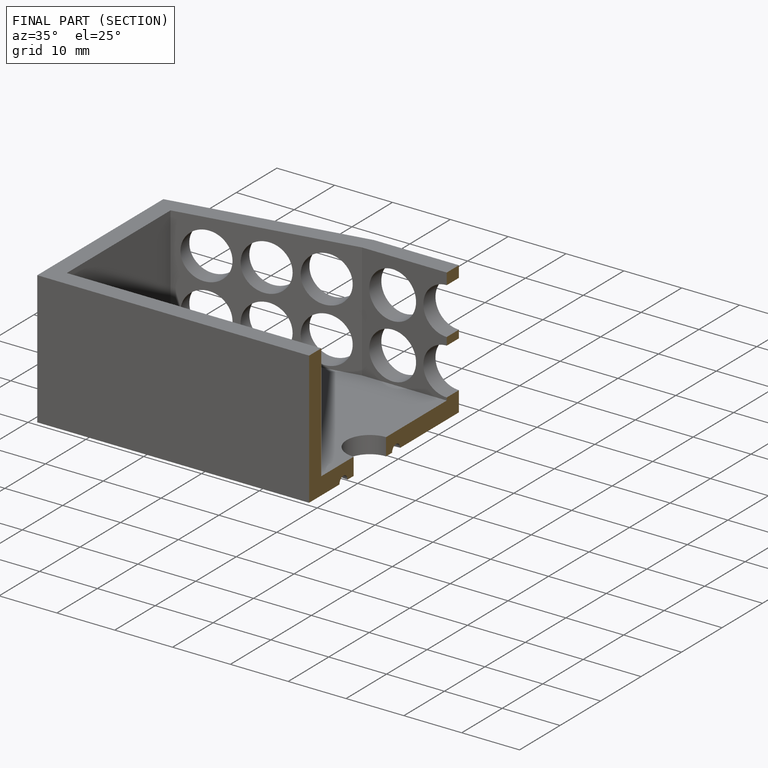
[diagram: finished part — half-section view (interior)]
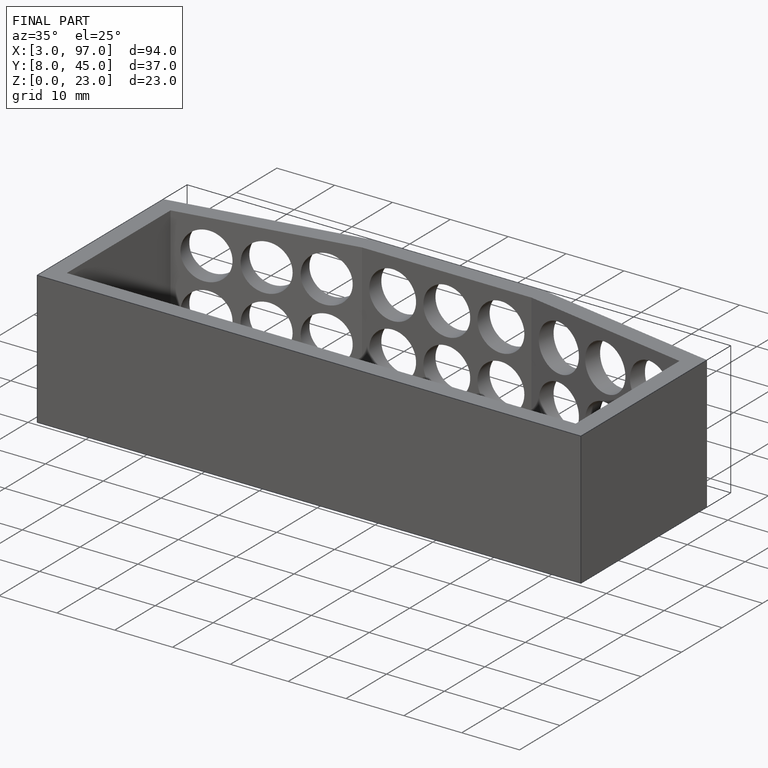
[diagram: finished part — iso view with bounding-box wireframe]
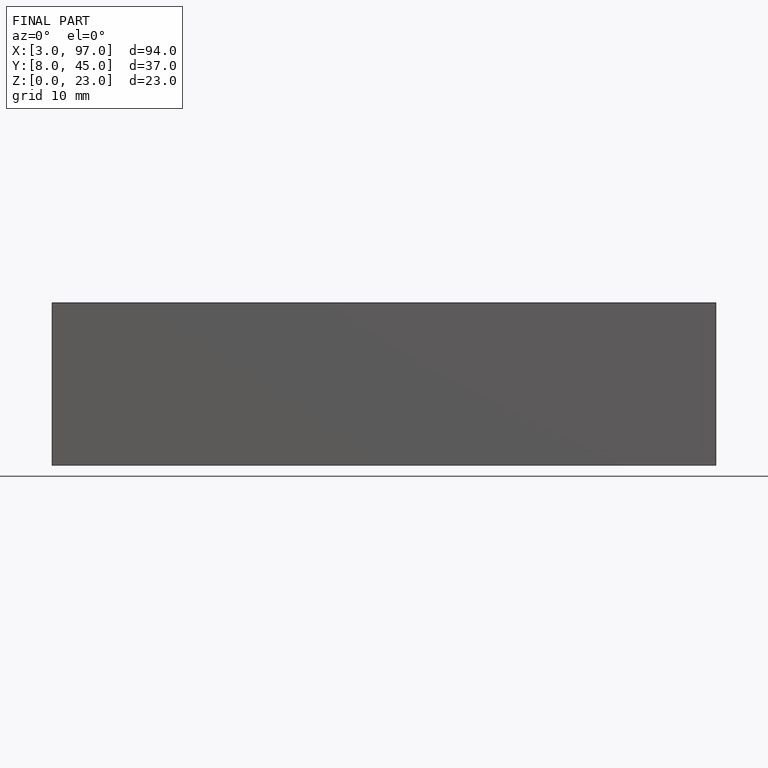
[diagram: finished part — front view with bounding-box wireframe]
